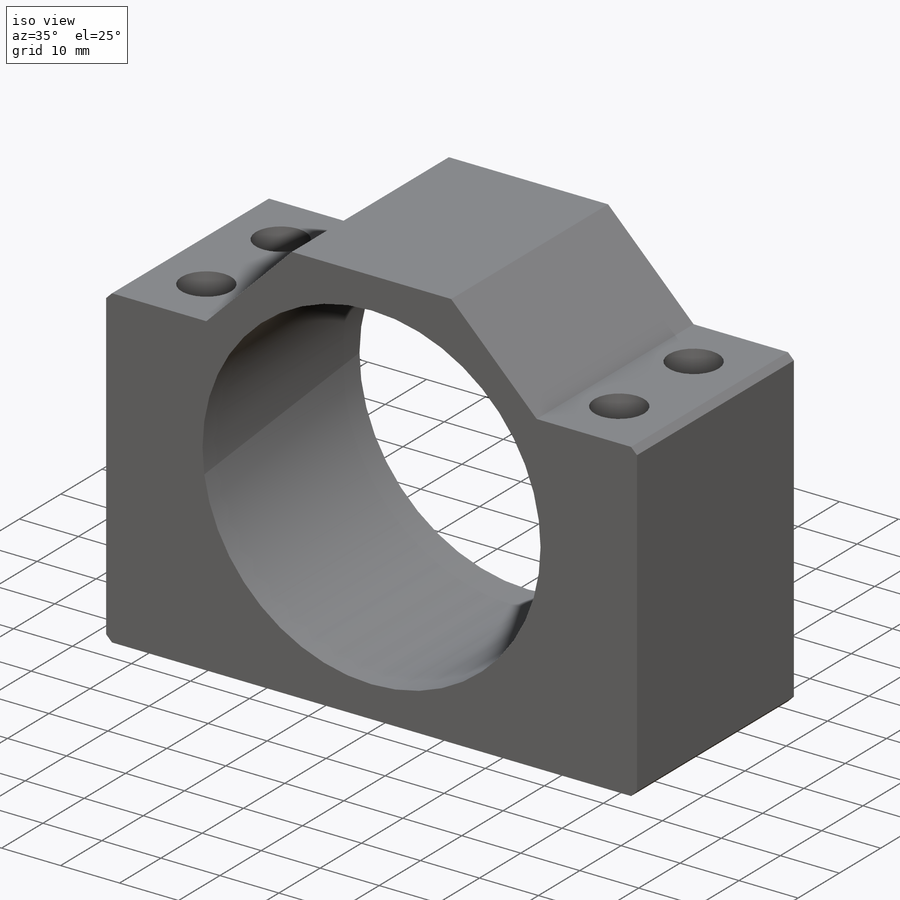
[diagram: iso view]
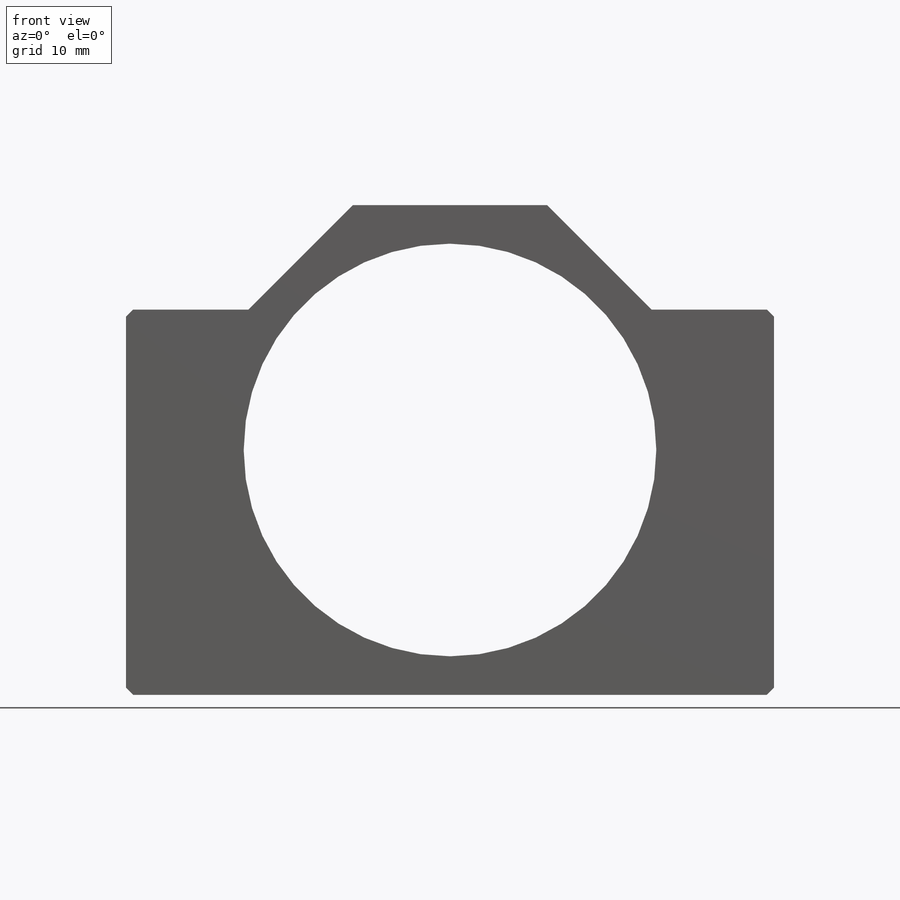
[diagram: front view]
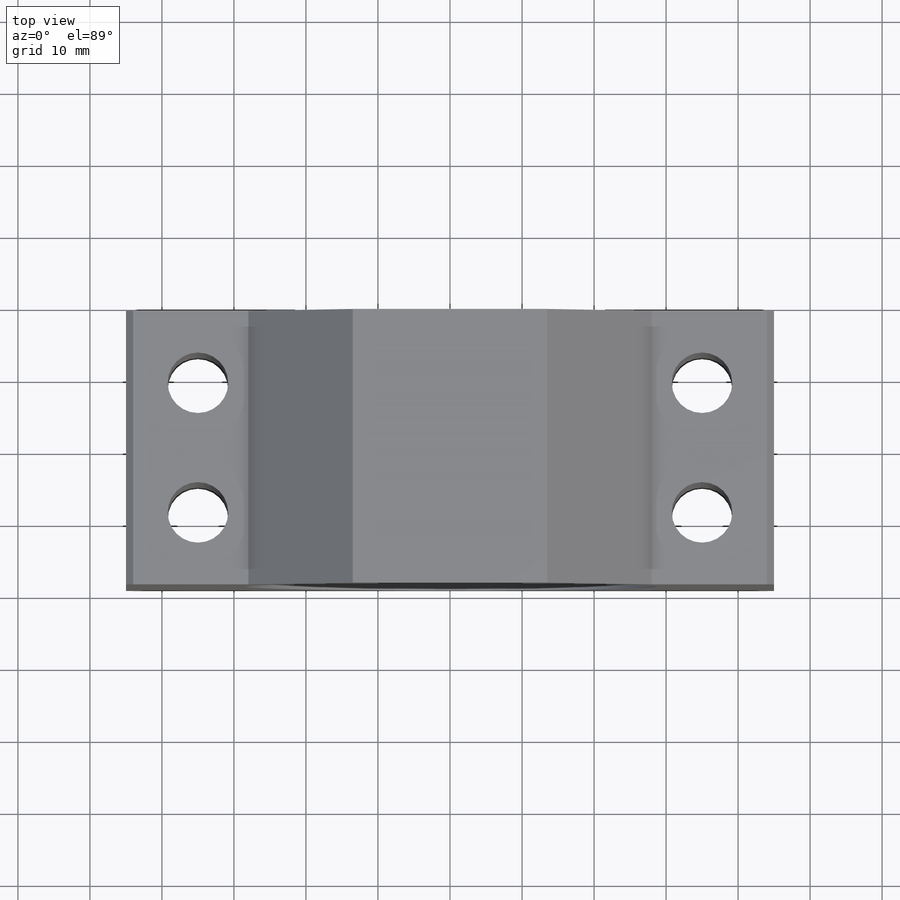
[diagram: top view]
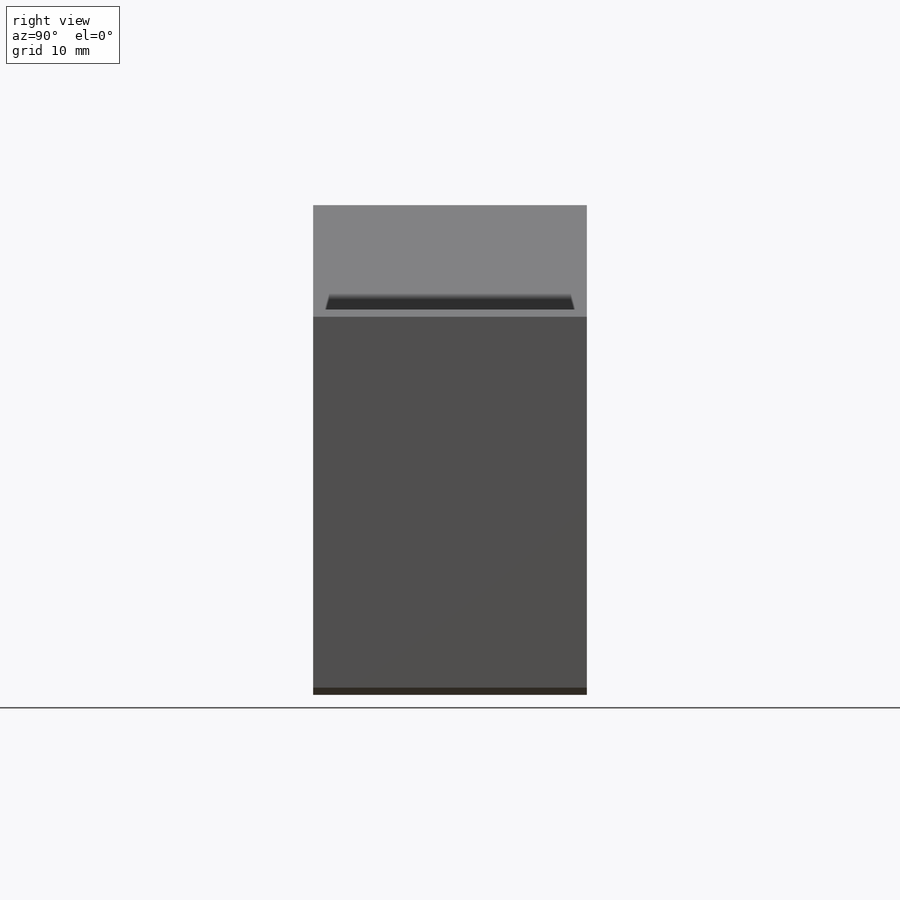
[diagram: right view]
SOLIDWORKS PART (.sldprt)
format: sldprt  version: not decoded by parser v0  size: 223,232 bytes
history: native  units: mm
features: sketch x4, material x1, extrude x1, hole x1, cut_extrude x1, chamfer x1 (+12 scaffold rows collapsed)
feature tree (21):
  scaffold x12  (default folders/planes/origin — collapsed)
  material  "Material <not specified>"
  sketch  "Sketch1"  dims[c1.D3=57.3mm c1.D1=90.0mm c1.D2=68.0mm c2.D1=90.0mm c2.D2=68.0mm]
  extrude  "Boss-Extrude1"  Depth=38mm
  hole  "M8 Clearance Hole1"  Diameter=8.4mm Depth=68mm
  sketch  "Sketch5"  dims[D1=35.0mm D2=9.0mm D3=35.0mm D4=9.0mm D5=35.0mm D6=9.0mm D7=35.0mm D8=9.0mm]
  sketch  "Sketch4"  dims[hole-wizard template sketch: 59 standard entries collapsed; hole parameters kept: c18.Thru Hole Dia.=8.4mm c18.Thru Hole Depth=68.0mm]
  sketch  "Sketch3"  dims[c1.D1=53.5mm c1.D2=13.5mm c1.D3=14.5mm c2.D3=135.0deg c2.D4=14.5mm c3.D4=135.0deg c3.D5=13.5mm]
  cut_extrude  "Cut-Extrude2"  [1 undecoded]
  chamfer  "Chamfer1"  Distance=1mm Angle=45deg
decode coverage: 7 of 8 modeling features carry decoded parameters
note: ~ marks probable driven/reference dimensions
note: 1 parameter value undecoded
note: suppression state not decoded; provenance and decode notes live in map.json
